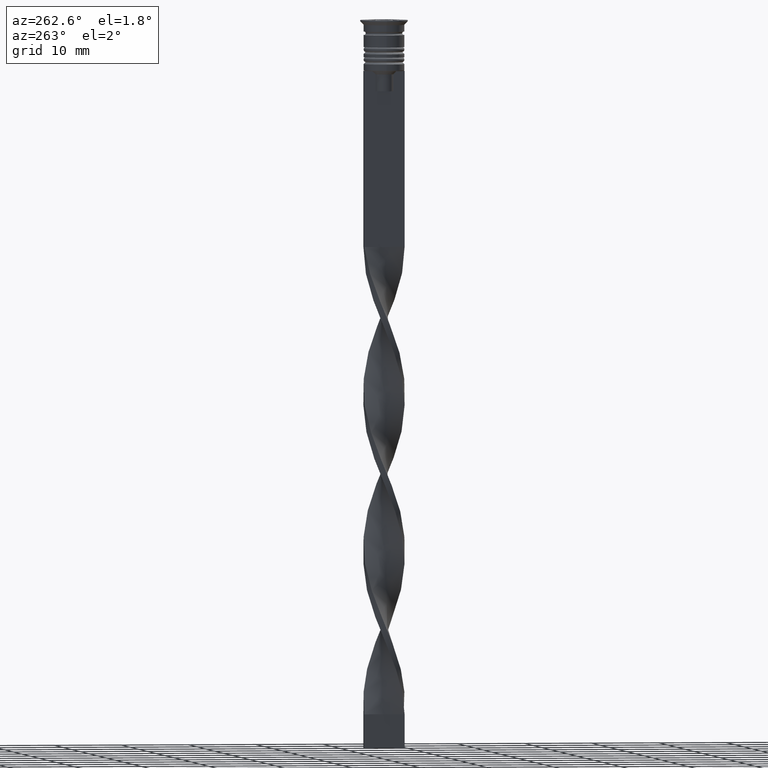
[diagram: clean part render]
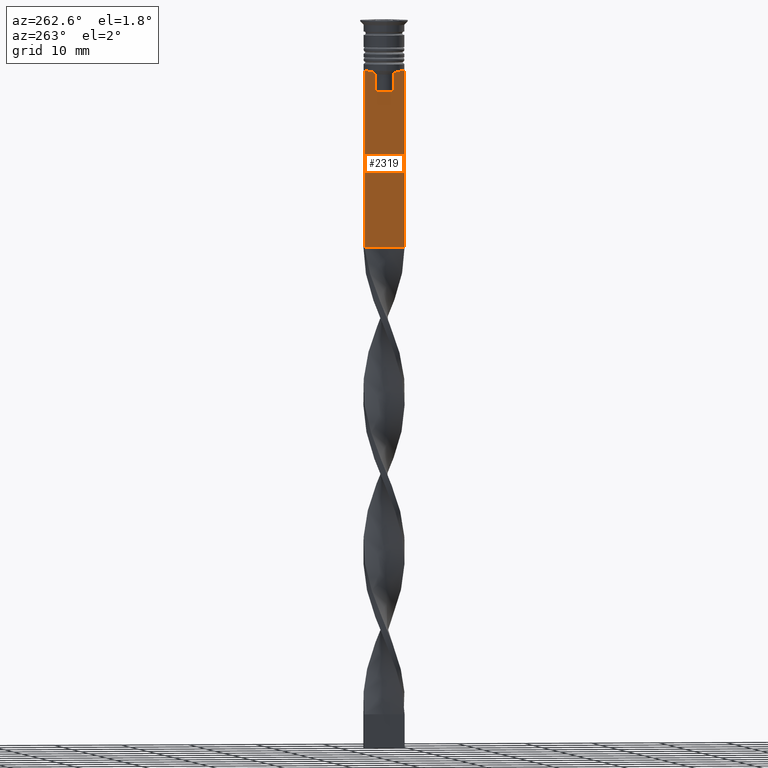
[diagram: same view with one face highlighted and labeled with its STEP entity id]
A machine part, auxiliary view. The second image highlights one B-rep face of the part: STEP entity #2319.
In plain terms, the highlighted planar face has unit normal (-1, 0, 0).
Its self-contained STEP definition (entity closure, byte-faithful):
#23 = VERTEX_POINT ( 'NONE', #2425 ) ;
#91 = VECTOR ( 'NONE', #1696, 1000.000000000000000 ) ;
#220 = CARTESIAN_POINT ( 'NONE',  ( -0.5000000000000001110, -3.000000000000000000, -33.50000000000000000 ) ) ;
#243 = ORIENTED_EDGE ( 'NONE', *, *, #1907, .F. ) ;
#293 = CARTESIAN_POINT ( 'NONE',  ( -0.5000000000000001110, -3.000000000000000000, -7.500000000000000000 ) ) ;
#335 = EDGE_CURVE ( 'NONE', #1169, #23, #3232, .T. ) ;
#399 = CARTESIAN_POINT ( 'NONE',  ( -0.5000000000000001110, -3.000000000000000000, -7.500000000000000000 ) ) ;
#445 = ORIENTED_EDGE ( 'NONE', *, *, #1064, .F. ) ;
#514 = EDGE_CURVE ( 'NONE', #1690, #855, #2517, .T. ) ;
#525 = ORIENTED_EDGE ( 'NONE', *, *, #1043, .F. ) ;
#536 = ORIENTED_EDGE ( 'NONE', *, *, #2766, .F. ) ;
#537 = AXIS2_PLACEMENT_3D ( 'NONE', #2535, #1761, #2829 ) ;
#588 = LINE ( 'NONE', #2729, #1703 ) ;
#591 = ORIENTED_EDGE ( 'NONE', *, *, #3277, .T. ) ;
#623 = EDGE_CURVE ( 'NONE', #23, #3395, #1951, .T. ) ;
#630 = LINE ( 'NONE', #2799, #91 ) ;
#665 = DIRECTION ( 'NONE',  ( 0.000000000000000000, -1.000000000000000000, 0.000000000000000000 ) ) ;
#683 = LINE ( 'NONE', #1040, #3221 ) ;
#703 = EDGE_CURVE ( 'NONE', #1769, #950, #2619, .T. ) ;
#716 = ORIENTED_EDGE ( 'NONE', *, *, #703, .F. ) ;
#717 = CARTESIAN_POINT ( 'NONE',  ( -0.5000000000000001110, -1.833030277982335532, -7.500000000000000000 ) ) ;
#753 = CARTESIAN_POINT ( 'NONE',  ( -0.5000000000000001110, 1.484355510416485391, -7.834966642958598015 ) ) ;
#754 = VECTOR ( 'NONE', #1876, 1000.000000000000000 ) ;
#811 = VECTOR ( 'NONE', #2624, 1000.000000000000000 ) ;
#855 = VERTEX_POINT ( 'NONE', #1116 ) ;
#889 = VERTEX_POINT ( 'NONE', #293 ) ;
#926 = EDGE_LOOP ( 'NONE', ( #536, #2016, #445, #591, #716, #3400, #1303, #2418, #1418, #3383, #525, #243 ) ) ;
#942 = PLANE ( 'NONE',  #537 ) ;
#950 = VERTEX_POINT ( 'NONE', #2247 ) ;
#989 = CARTESIAN_POINT ( 'NONE',  ( -0.5000000000000001110, -1.307669683062199217, -8.000000000000000000 ) ) ;
#1040 = CARTESIAN_POINT ( 'NONE',  ( -0.5000000000000001110, 3.000000000000000000, -1.417237469701779329 ) ) ;
#1043 = EDGE_CURVE ( 'NONE', #2190, #1169, #3275, .T. ) ;
#1045 = DIRECTION ( 'NONE',  ( 0.000000000000000000, 1.000000000000000000, 0.000000000000000000 ) ) ;
#1064 = EDGE_CURVE ( 'NONE', #1966, #1690, #630, .T. ) ;
#1116 = CARTESIAN_POINT ( 'NONE',  ( -0.5000000000000001110, 1.833030277982335532, -7.500000000000000000 ) ) ;
#1120 = CARTESIAN_POINT ( 'NONE',  ( -0.5000000000000001110, 3.000000000000000000, -7.500000000000000000 ) ) ;
#1169 = VERTEX_POINT ( 'NONE', #1387 ) ;
#1200 = CARTESIAN_POINT ( 'NONE',  ( -0.5000000000000001110, 1.399999999999997691, -10.49999999999999822 ) ) ;
#1280 = VERTEX_POINT ( 'NONE', #1339 ) ;
#1303 = ORIENTED_EDGE ( 'NONE', *, *, #2996, .F. ) ;
#1339 = CARTESIAN_POINT ( 'NONE',  ( -0.5000000000000001110, 1.307669683062199217, -8.000000000000000000 ) ) ;
#1387 = CARTESIAN_POINT ( 'NONE',  ( -0.5000000000000001110, -1.307669683062199217, -10.49999999999999822 ) ) ;
#1418 = ORIENTED_EDGE ( 'NONE', *, *, #623, .F. ) ;
#1474 = VECTOR ( 'NONE', #2456, 1000.000000000000000 ) ;
#1536 = VECTOR ( 'NONE', #2395, 1000.000000000000000 ) ;
#1542 = CARTESIAN_POINT ( 'NONE',  ( -0.5000000000000001110, 1.307669683062199217, 0.000000000000000000 ) ) ;
#1690 = VERTEX_POINT ( 'NONE', #3349 ) ;
#1696 = DIRECTION ( 'NONE',  ( 0.000000000000000000, -1.000000000000000000, 0.000000000000000000 ) ) ;
#1703 = VECTOR ( 'NONE', #2504, 1000.000000000000000 ) ;
#1755 = VECTOR ( 'NONE', #3026, 1000.000000000000000 ) ;
#1761 = DIRECTION ( 'NONE',  ( -1.000000000000000000, 0.000000000000000000, 0.000000000000000000 ) ) ;
#1769 = VERTEX_POINT ( 'NONE', #2672 ) ;
#1772 = CARTESIAN_POINT ( 'NONE',  ( -0.5000000000000001110, 1.833030277982335532, -7.500000000000000000 ) ) ;
#1876 = DIRECTION ( 'NONE',  ( 0.000000000000000000, 0.000000000000000000, -1.000000000000000000 ) ) ;
#1897 = CARTESIAN_POINT ( 'NONE',  ( -0.5000000000000001110, -2.856571371417139904, -7.500000000000000000 ) ) ;
#1907 = EDGE_CURVE ( 'NONE', #1280, #2190, #3129, .T. ) ;
#1929 = EDGE_CURVE ( 'NONE', #3395, #2866, #588, .T. ) ;
#1951 = B_SPLINE_CURVE_WITH_KNOTS ( 'NONE', 3,
 ( #989, #2046, #3113, #717 ),
 .UNSPECIFIED., .F., .F.,
 ( 4, 4 ),
 ( 0.007225659348748070081, 0.007950554640278040958 ),
 .UNSPECIFIED. ) ;
#1966 = VERTEX_POINT ( 'NONE', #1120 ) ;
#2016 = ORIENTED_EDGE ( 'NONE', *, *, #514, .F. ) ;
#2046 = CARTESIAN_POINT ( 'NONE',  ( -0.5000000000000001110, -1.484307477388859153, -7.835011508197190722 ) ) ;
#2137 = CARTESIAN_POINT ( 'NONE',  ( -0.5000000000000001110, 1.307669683062199217, -10.49999999999999822 ) ) ;
#2146 = VECTOR ( 'NONE', #665, 1000.000000000000000 ) ;
#2180 = CARTESIAN_POINT ( 'NONE',  ( -0.5000000000000001110, -3.000000000000000000, -1.417237469701779329 ) ) ;
#2190 = VERTEX_POINT ( 'NONE', #2137 ) ;
#2247 = CARTESIAN_POINT ( 'NONE',  ( -0.5000000000000001110, 3.000000000000000000, -33.50000000000000000 ) ) ;
#2319 = ADVANCED_FACE ( 'NONE', ( #3084 ), #942, .T. ) ;
#2345 = CARTESIAN_POINT ( 'NONE',  ( -0.5000000000000001110, -1.833030277982335532, -7.500000000000000000 ) ) ;
#2395 = DIRECTION ( 'NONE',  ( 0.000000000000000000, -1.000000000000000000, 0.000000000000000000 ) ) ;
#2414 = LINE ( 'NONE', #2180, #754 ) ;
#2418 = ORIENTED_EDGE ( 'NONE', *, *, #1929, .F. ) ;
#2419 = CARTESIAN_POINT ( 'NONE',  ( -0.5000000000000001110, -1.307669683062199217, 0.000000000000000000 ) ) ;
#2425 = CARTESIAN_POINT ( 'NONE',  ( -0.5000000000000001110, -1.307669683062199217, -8.000000000000000000 ) ) ;
#2456 = DIRECTION ( 'NONE',  ( -0.000000000000000000, -0.000000000000000000, 1.000000000000000000 ) ) ;
#2504 = DIRECTION ( 'NONE',  ( 0.000000000000000000, -1.000000000000000000, 0.000000000000000000 ) ) ;
#2517 = LINE ( 'NONE', #399, #2146 ) ;
#2535 = CARTESIAN_POINT ( 'NONE',  ( -0.5000000000000001110, -3.000000000000000000, -1.417237469701779329 ) ) ;
#2571 = CARTESIAN_POINT ( 'NONE',  ( -0.5000000000000001110, 1.659046061654642523, -7.667851756010361619 ) ) ;
#2619 = LINE ( 'NONE', #220, #3143 ) ;
#2624 = DIRECTION ( 'NONE',  ( 0.000000000000000000, 0.000000000000000000, -1.000000000000000000 ) ) ;
#2646 = DIRECTION ( 'NONE',  ( 0.000000000000000000, 0.000000000000000000, -1.000000000000000000 ) ) ;
#2672 = CARTESIAN_POINT ( 'NONE',  ( -0.5000000000000001110, -3.000000000000000000, -33.50000000000000000 ) ) ;
#2729 = CARTESIAN_POINT ( 'NONE',  ( -0.5000000000000001110, -3.000000000000000000, -7.500000000000000000 ) ) ;
#2753 = B_SPLINE_CURVE_WITH_KNOTS ( 'NONE', 3,
 ( #1772, #2571, #753, #2889 ),
 .UNSPECIFIED., .F., .F.,
 ( 4, 4 ),
 ( 0.003278537493109840491, 0.004003794023484932504 ),
 .UNSPECIFIED. ) ;
#2766 = EDGE_CURVE ( 'NONE', #855, #1280, #2753, .T. ) ;
#2799 = CARTESIAN_POINT ( 'NONE',  ( -0.5000000000000001110, -3.000000000000000000, -7.500000000000000000 ) ) ;
#2829 = DIRECTION ( 'NONE',  ( 0.000000000000000000, 0.000000000000000000, 1.000000000000000000 ) ) ;
#2866 = VERTEX_POINT ( 'NONE', #1897 ) ;
#2889 = CARTESIAN_POINT ( 'NONE',  ( -0.5000000000000001110, 1.307669683062199217, -8.000000000000000000 ) ) ;
#2994 = EDGE_CURVE ( 'NONE', #889, #1769, #2414, .T. ) ;
#2996 = EDGE_CURVE ( 'NONE', #2866, #889, #3243, .T. ) ;
#3026 = DIRECTION ( 'NONE',  ( 0.000000000000000000, -1.000000000000000000, 0.000000000000000000 ) ) ;
#3084 = FACE_OUTER_BOUND ( 'NONE', #926, .T. ) ;
#3113 = CARTESIAN_POINT ( 'NONE',  ( -0.5000000000000001110, -1.659011726860414093, -7.667884880598472286 ) ) ;
#3129 = LINE ( 'NONE', #1542, #811 ) ;
#3143 = VECTOR ( 'NONE', #1045, 1000.000000000000000 ) ;
#3221 = VECTOR ( 'NONE', #2646, 1000.000000000000000 ) ;
#3232 = LINE ( 'NONE', #2419, #1474 ) ;
#3243 = LINE ( 'NONE', #3257, #1536 ) ;
#3257 = CARTESIAN_POINT ( 'NONE',  ( -0.5000000000000001110, -3.000000000000000000, -7.500000000000000000 ) ) ;
#3275 = LINE ( 'NONE', #1200, #1755 ) ;
#3277 = EDGE_CURVE ( 'NONE', #1966, #950, #683, .T. ) ;
#3349 = CARTESIAN_POINT ( 'NONE',  ( -0.5000000000000001110, 2.856571371417139904, -7.500000000000000000 ) ) ;
#3383 = ORIENTED_EDGE ( 'NONE', *, *, #335, .F. ) ;
#3395 = VERTEX_POINT ( 'NONE', #2345 ) ;
#3400 = ORIENTED_EDGE ( 'NONE', *, *, #2994, .F. ) ;